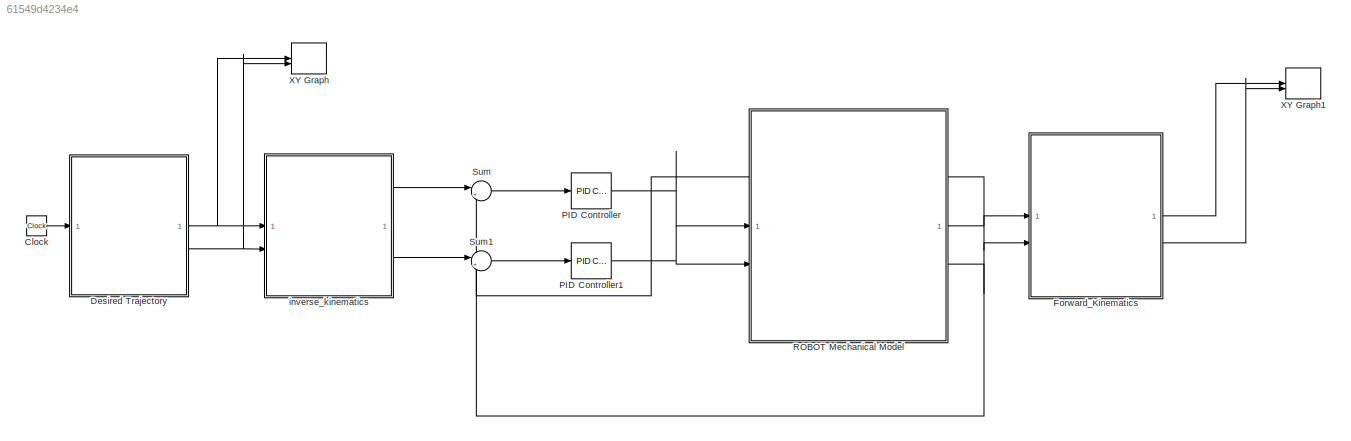
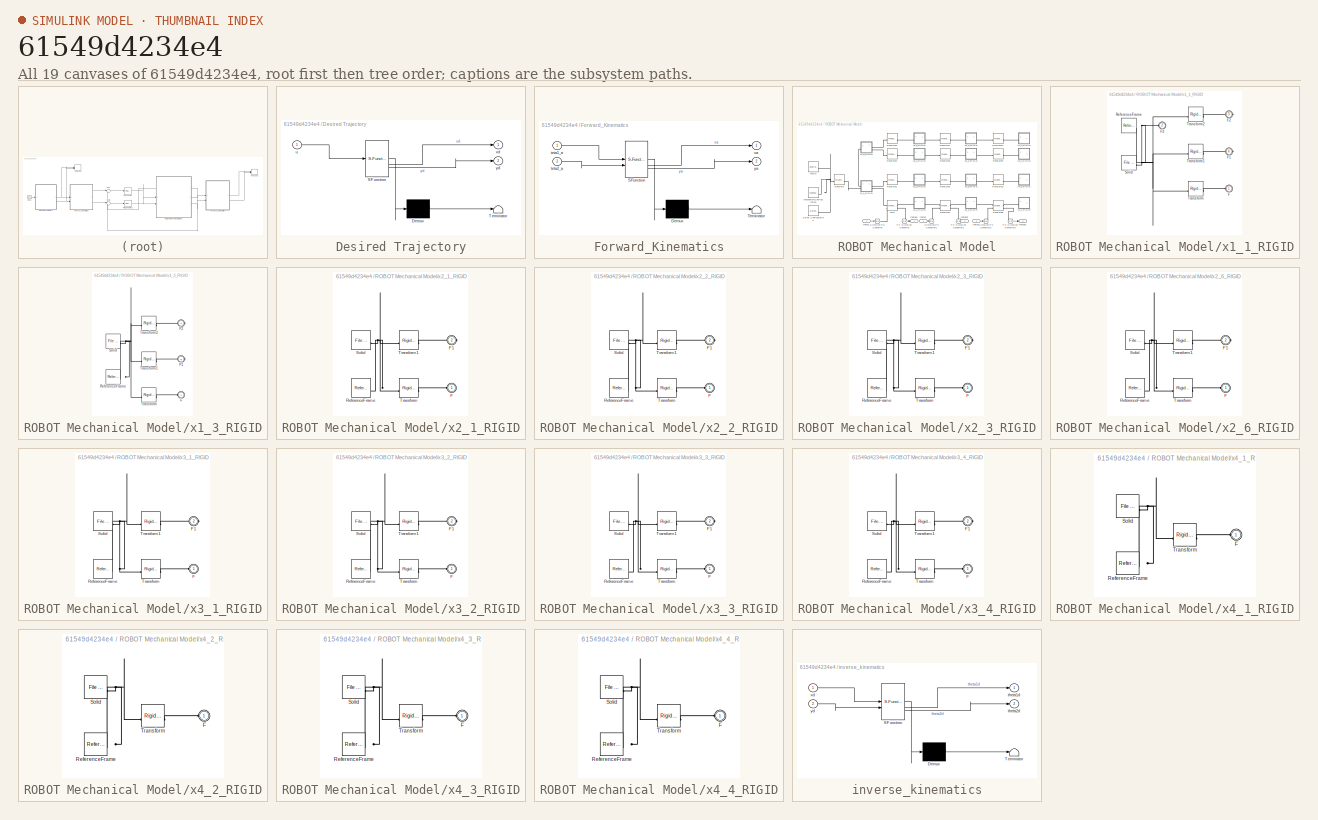
[diagram: thumbnail index - all 19 canvases of the model, root first then tree order]
MODEL slx_61549d4234e4
KIND model
CONFIG AbsTol = auto
CONFIG EnableMultiTasking = off
CONFIG FixedStep = auto
CONFIG MaxStep = auto
CONFIG MinStep = auto
CONFIG RelTol = 1e-3
CONFIG SampleTimeConstraint = Unconstrained
CONFIG SolverName = VariableStepAuto
CONFIG StartTime = 0.0
CONFIG StopTime = 10.0
WORKSPACE source: external: MATLAB File  (data not in archive)
BLOCK [SubSystem]  Desired Trajectory 
  ErrorFcn = Stateflow.Translate.translate
  LibrarySourceBlock = simulink/User-Defined\nFunctions/MATLAB Function
  PermitHierarchicalResolution = ExplicitOnly
  SFBlockType = MATLAB Function
  TreatAsAtomicUnit = on
BLOCK [Demux]  Desired Trajectory / Demux 
  Outputs = 1
BLOCK [S-Function]  Desired Trajectory / SFunction 
  EnableBusSupport = on
  FunctionName = sf_sfun
  PortCounts = [1 3]
  SFcnIsStateOwnerBlock = off
  SFunctionDeploymentMode = off
  Tag = Stateflow S-Function 2
BLOCK [Terminator]  Desired Trajectory / Terminator 
BLOCK [Inport]  Desired Trajectory /u
BLOCK [Outport]  Desired Trajectory /xd
BLOCK [Outport]  Desired Trajectory /yd
  Port = 2
BLOCK [Clock] Clock
  DisplayTime = on
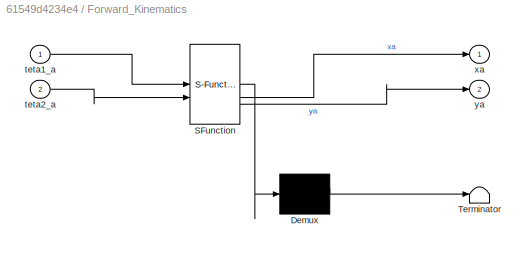
BLOCK [SubSystem] Forward_Kinematics
  ErrorFcn = Stateflow.Translate.translate
  LibrarySourceBlock = simulink/User-Defined\nFunctions/MATLAB Function
  PermitHierarchicalResolution = ExplicitOnly
  SFBlockType = MATLAB Function
  TreatAsAtomicUnit = on
BLOCK [Demux] Forward_Kinematics/ Demux 
  Outputs = 1
BLOCK [S-Function] Forward_Kinematics/ SFunction 
  EnableBusSupport = on
  FunctionName = sf_sfun
  PortCounts = [2 3]
  SFcnIsStateOwnerBlock = off
  SFunctionDeploymentMode = off
  Tag = Stateflow S-Function 1
BLOCK [Terminator] Forward_Kinematics/ Terminator 
BLOCK [Inport] Forward_Kinematics/teta1_a
BLOCK [Inport] Forward_Kinematics/teta2_a
  Port = 2
BLOCK [Outport] Forward_Kinematics/xa
BLOCK [Outport] Forward_Kinematics/ya
  Port = 2
BLOCK [Reference] PID Controller  REF=slpidlib/PID Controller
  LibrarySourceBlock = simulink/Continuous/PID Controller
  SourceBlock = slpidlib/PID Controller
  SourceType = PID 1dof
BLOCK [Reference] PID Controller1  REF=slpidlib/PID Controller
  LibrarySourceBlock = simulink/Continuous/PID Controller
  SourceBlock = slpidlib/PID Controller
  SourceType = PID 1dof
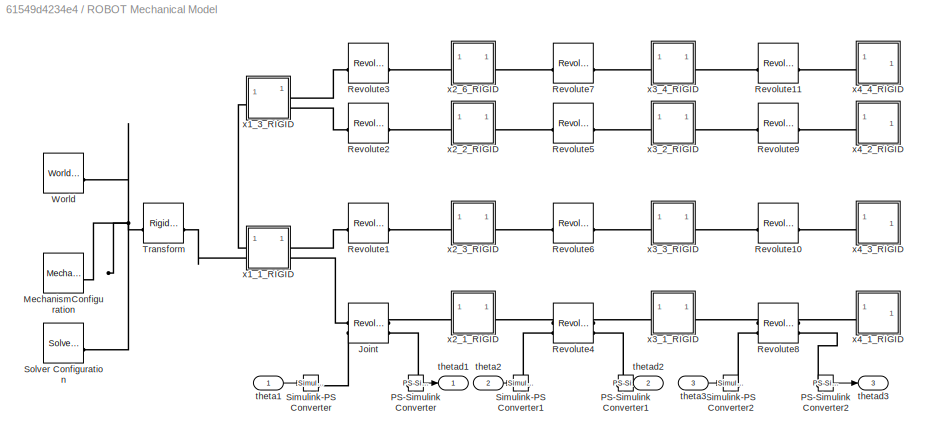
BLOCK [SubSystem] ROBOT Mechanical Model
BLOCK [Reference] ROBOT Mechanical Model/Joint  REF=sm_lib/Joints/Revolute Joint
  SourceBlock = sm_lib/Joints/Revolute Joint
  SourceType = Revolute Joint
BLOCK [Reference] ROBOT Mechanical Model/MechanismConfiguration  REF=sm_lib/Utilities/Mechanism
Configuration
  SourceBlock = sm_lib/Utilities/Mechanism\nConfiguration
  SourceType = Mechanism\nConfiguration
BLOCK [Reference] ROBOT Mechanical Model/PS-Simulink Converter  REF=nesl_utility/PS-Simulink
Converter
  SourceBlock = nesl_utility/PS-Simulink\nConverter
  SourceType = PS-Simulink\nConverter
BLOCK [Reference] ROBOT Mechanical Model/PS-Simulink Converter1  REF=nesl_utility/PS-Simulink
Converter
  SourceBlock = nesl_utility/PS-Simulink\nConverter
  SourceType = PS-Simulink\nConverter
BLOCK [Reference] ROBOT Mechanical Model/PS-Simulink Converter2  REF=nesl_utility/PS-Simulink
Converter
  SourceBlock = nesl_utility/PS-Simulink\nConverter
  SourceType = PS-Simulink\nConverter
BLOCK [Reference] ROBOT Mechanical Model/Revolute1  REF=sm_lib/Joints/Revolute Joint
  SourceBlock = sm_lib/Joints/Revolute Joint
  SourceType = Revolute Joint
BLOCK [Reference] ROBOT Mechanical Model/Revolute10  REF=sm_lib/Joints/Revolute Joint
  SourceBlock = sm_lib/Joints/Revolute Joint
  SourceType = Revolute Joint
BLOCK [Reference] ROBOT Mechanical Model/Revolute11  REF=sm_lib/Joints/Revolute Joint
  SourceBlock = sm_lib/Joints/Revolute Joint
  SourceType = Revolute Joint
BLOCK [Reference] ROBOT Mechanical Model/Revolute2  REF=sm_lib/Joints/Revolute Joint
  SourceBlock = sm_lib/Joints/Revolute Joint
  SourceType = Revolute Joint
BLOCK [Reference] ROBOT Mechanical Model/Revolute3  REF=sm_lib/Joints/Revolute Joint
  SourceBlock = sm_lib/Joints/Revolute Joint
  SourceType = Revolute Joint
BLOCK [Reference] ROBOT Mechanical Model/Revolute4  REF=sm_lib/Joints/Revolute Joint
  SourceBlock = sm_lib/Joints/Revolute Joint
  SourceType = Revolute Joint
BLOCK [Reference] ROBOT Mechanical Model/Revolute5  REF=sm_lib/Joints/Revolute Joint
  SourceBlock = sm_lib/Joints/Revolute Joint
  SourceType = Revolute Joint
BLOCK [Reference] ROBOT Mechanical Model/Revolute6  REF=sm_lib/Joints/Revolute Joint
  SourceBlock = sm_lib/Joints/Revolute Joint
  SourceType = Revolute Joint
BLOCK [Reference] ROBOT Mechanical Model/Revolute7  REF=sm_lib/Joints/Revolute Joint
  SourceBlock = sm_lib/Joints/Revolute Joint
  SourceType = Revolute Joint
BLOCK [Reference] ROBOT Mechanical Model/Revolute8  REF=sm_lib/Joints/Revolute Joint
  SourceBlock = sm_lib/Joints/Revolute Joint
  SourceType = Revolute Joint
BLOCK [Reference] ROBOT Mechanical Model/Revolute9  REF=sm_lib/Joints/Revolute Joint
  SourceBlock = sm_lib/Joints/Revolute Joint
  SourceType = Revolute Joint
BLOCK [Reference] ROBOT Mechanical Model/Simulink-PS Converter  REF=nesl_utility/Simulink-PS
Converter
  SourceBlock = nesl_utility/Simulink-PS\nConverter
  SourceType = Simulink-PS\nConverter
BLOCK [Reference] ROBOT Mechanical Model/Simulink-PS Converter1  REF=nesl_utility/Simulink-PS
Converter
  SourceBlock = nesl_utility/Simulink-PS\nConverter
  SourceType = Simulink-PS\nConverter
BLOCK [Reference] ROBOT Mechanical Model/Simulink-PS Converter2  REF=nesl_utility/Simulink-PS
Converter
  SourceBlock = nesl_utility/Simulink-PS\nConverter
  SourceType = Simulink-PS\nConverter
BLOCK [Reference] ROBOT Mechanical Model/Solver Configuration  REF=nesl_utility/Solver
Configuration
  SourceBlock = nesl_utility/Solver\nConfiguration
  SourceType = Solver\nConfiguration
BLOCK [Reference] ROBOT Mechanical Model/Transform  REF=sm_lib/Frames and
Transforms/Rigid
Transform
  SourceBlock = sm_lib/Frames and\nTransforms/Rigid\nTransform
  SourceType = Rigid\nTransform
BLOCK [Reference] ROBOT Mechanical Model/World  REF=sm_lib/Frames and
Transforms/World Frame
  SourceBlock = sm_lib/Frames and\nTransforms/World Frame
  SourceType = World Frame
BLOCK [Inport] ROBOT Mechanical Model/theta1
BLOCK [Inport] ROBOT Mechanical Model/theta2
  Port = 2
BLOCK [Inport] ROBOT Mechanical Model/theta3
  Port = 3
BLOCK [Outport] ROBOT Mechanical Model/thetad1
BLOCK [Outport] ROBOT Mechanical Model/thetad2
  Port = 2
BLOCK [Outport] ROBOT Mechanical Model/thetad3
  Port = 3
BLOCK [SubSystem] ROBOT Mechanical Model/x1_1_RIGID
BLOCK [PMIOPort] ROBOT Mechanical Model/x1_1_RIGID/F
  Side = Left
BLOCK [PMIOPort] ROBOT Mechanical Model/x1_1_RIGID/F1
  Port = 4
  Side = Right
BLOCK [PMIOPort] ROBOT Mechanical Model/x1_1_RIGID/F2
  Port = 3
  Side = Right
BLOCK [PMIOPort] ROBOT Mechanical Model/x1_1_RIGID/F3
  Port = 2
  Side = Left
BLOCK [Reference] ROBOT Mechanical Model/x1_1_RIGID/ReferenceFrame  REF=sm_lib/Frames and
Transforms/Reference
Frame
  SourceBlock = sm_lib/Frames and\nTransforms/Reference\nFrame
  SourceType = Reference\nFrame
BLOCK [Reference] ROBOT Mechanical Model/x1_1_RIGID/Solid  REF=sm_lib/Body Elements/File Solid
  SourceBlock = sm_lib/Body Elements/File Solid
  SourceType = File Solid
BLOCK [Reference] ROBOT Mechanical Model/x1_1_RIGID/Transform  REF=sm_lib/Frames and
Transforms/Rigid
Transform
  SourceBlock = sm_lib/Frames and\nTransforms/Rigid\nTransform
  SourceType = Rigid\nTransform
BLOCK [Reference] ROBOT Mechanical Model/x1_1_RIGID/Transform1  REF=sm_lib/Frames and
Transforms/Rigid
Transform
  SourceBlock = sm_lib/Frames and\nTransforms/Rigid\nTransform
  SourceType = Rigid\nTransform
BLOCK [Reference] ROBOT Mechanical Model/x1_1_RIGID/Transform2  REF=sm_lib/Frames and
Transforms/Rigid
Transform
  SourceBlock = sm_lib/Frames and\nTransforms/Rigid\nTransform
  SourceType = Rigid\nTransform
BLOCK [SubSystem] ROBOT Mechanical Model/x1_3_RIGID
BLOCK [PMIOPort] ROBOT Mechanical Model/x1_3_RIGID/F
  Side = Left
BLOCK [PMIOPort] ROBOT Mechanical Model/x1_3_RIGID/F1
  Port = 3
  Side = Right
BLOCK [PMIOPort] ROBOT Mechanical Model/x1_3_RIGID/F2
  Port = 2
  Side = Right
BLOCK [Reference] ROBOT Mechanical Model/x1_3_RIGID/ReferenceFrame  REF=sm_lib/Frames and
Transforms/Reference
Frame
  SourceBlock = sm_lib/Frames and\nTransforms/Reference\nFrame
  SourceType = Reference\nFrame
BLOCK [Reference] ROBOT Mechanical Model/x1_3_RIGID/Solid  REF=sm_lib/Body Elements/File Solid
  SourceBlock = sm_lib/Body Elements/File Solid
  SourceType = File Solid
BLOCK [Reference] ROBOT Mechanical Model/x1_3_RIGID/Transform  REF=sm_lib/Frames and
Transforms/Rigid
Transform
  SourceBlock = sm_lib/Frames and\nTransforms/Rigid\nTransform
  SourceType = Rigid\nTransform
BLOCK [Reference] ROBOT Mechanical Model/x1_3_RIGID/Transform1  REF=sm_lib/Frames and
Transforms/Rigid
Transform
  SourceBlock = sm_lib/Frames and\nTransforms/Rigid\nTransform
  SourceType = Rigid\nTransform
BLOCK [Reference] ROBOT Mechanical Model/x1_3_RIGID/Transform2  REF=sm_lib/Frames and
Transforms/Rigid
Transform
  SourceBlock = sm_lib/Frames and\nTransforms/Rigid\nTransform
  SourceType = Rigid\nTransform
BLOCK [SubSystem] ROBOT Mechanical Model/x2_1_RIGID
BLOCK [PMIOPort] ROBOT Mechanical Model/x2_1_RIGID/F
  Side = Left
BLOCK [PMIOPort] ROBOT Mechanical Model/x2_1_RIGID/F1
  Port = 2
  Side = Right
BLOCK [Reference] ROBOT Mechanical Model/x2_1_RIGID/ReferenceFrame  REF=sm_lib/Frames and
Transforms/Reference
Frame
  SourceBlock = sm_lib/Frames and\nTransforms/Reference\nFrame
  SourceType = Reference\nFrame
BLOCK [Reference] ROBOT Mechanical Model/x2_1_RIGID/Solid  REF=sm_lib/Body Elements/File Solid
  SourceBlock = sm_lib/Body Elements/File Solid
  SourceType = File Solid
BLOCK [Reference] ROBOT Mechanical Model/x2_1_RIGID/Transform  REF=sm_lib/Frames and
Transforms/Rigid
Transform
  SourceBlock = sm_lib/Frames and\nTransforms/Rigid\nTransform
  SourceType = Rigid\nTransform
BLOCK [Reference] ROBOT Mechanical Model/x2_1_RIGID/Transform1  REF=sm_lib/Frames and
Transforms/Rigid
Transform
  SourceBlock = sm_lib/Frames and\nTransforms/Rigid\nTransform
  SourceType = Rigid\nTransform
BLOCK [SubSystem] ROBOT Mechanical Model/x2_2_RIGID
BLOCK [PMIOPort] ROBOT Mechanical Model/x2_2_RIGID/F
  Side = Left
BLOCK [PMIOPort] ROBOT Mechanical Model/x2_2_RIGID/F1
  Port = 2
  Side = Right
BLOCK [Reference] ROBOT Mechanical Model/x2_2_RIGID/ReferenceFrame  REF=sm_lib/Frames and
Transforms/Reference
Frame
  SourceBlock = sm_lib/Frames and\nTransforms/Reference\nFrame
  SourceType = Reference\nFrame
BLOCK [Reference] ROBOT Mechanical Model/x2_2_RIGID/Solid  REF=sm_lib/Body Elements/File Solid
  SourceBlock = sm_lib/Body Elements/File Solid
  SourceType = File Solid
BLOCK [Reference] ROBOT Mechanical Model/x2_2_RIGID/Transform  REF=sm_lib/Frames and
Transforms/Rigid
Transform
  SourceBlock = sm_lib/Frames and\nTransforms/Rigid\nTransform
  SourceType = Rigid\nTransform
BLOCK [Reference] ROBOT Mechanical Model/x2_2_RIGID/Transform1  REF=sm_lib/Frames and
Transforms/Rigid
Transform
  SourceBlock = sm_lib/Frames and\nTransforms/Rigid\nTransform
  SourceType = Rigid\nTransform
BLOCK [SubSystem] ROBOT Mechanical Model/x2_3_RIGID
BLOCK [PMIOPort] ROBOT Mechanical Model/x2_3_RIGID/F
  Side = Left
BLOCK [PMIOPort] ROBOT Mechanical Model/x2_3_RIGID/F1
  Port = 2
  Side = Right
BLOCK [Reference] ROBOT Mechanical Model/x2_3_RIGID/ReferenceFrame  REF=sm_lib/Frames and
Transforms/Reference
Frame
  SourceBlock = sm_lib/Frames and\nTransforms/Reference\nFrame
  SourceType = Reference\nFrame
BLOCK [Reference] ROBOT Mechanical Model/x2_3_RIGID/Solid  REF=sm_lib/Body Elements/File Solid
  SourceBlock = sm_lib/Body Elements/File Solid
  SourceType = File Solid
BLOCK [Reference] ROBOT Mechanical Model/x2_3_RIGID/Transform  REF=sm_lib/Frames and
Transforms/Rigid
Transform
  SourceBlock = sm_lib/Frames and\nTransforms/Rigid\nTransform
  SourceType = Rigid\nTransform
BLOCK [Reference] ROBOT Mechanical Model/x2_3_RIGID/Transform1  REF=sm_lib/Frames and
Transforms/Rigid
Transform
  SourceBlock = sm_lib/Frames and\nTransforms/Rigid\nTransform
  SourceType = Rigid\nTransform
BLOCK [SubSystem] ROBOT Mechanical Model/x2_6_RIGID
BLOCK [PMIOPort] ROBOT Mechanical Model/x2_6_RIGID/F
  Side = Left
BLOCK [PMIOPort] ROBOT Mechanical Model/x2_6_RIGID/F1
  Port = 2
  Side = Right
BLOCK [Reference] ROBOT Mechanical Model/x2_6_RIGID/ReferenceFrame  REF=sm_lib/Frames and
Transforms/Reference
Frame
  SourceBlock = sm_lib/Frames and\nTransforms/Reference\nFrame
  SourceType = Reference\nFrame
BLOCK [Reference] ROBOT Mechanical Model/x2_6_RIGID/Solid  REF=sm_lib/Body Elements/File Solid
  SourceBlock = sm_lib/Body Elements/File Solid
  SourceType = File Solid
BLOCK [Reference] ROBOT Mechanical Model/x2_6_RIGID/Transform  REF=sm_lib/Frames and
Transforms/Rigid
Transform
  SourceBlock = sm_lib/Frames and\nTransforms/Rigid\nTransform
  SourceType = Rigid\nTransform
BLOCK [Reference] ROBOT Mechanical Model/x2_6_RIGID/Transform1  REF=sm_lib/Frames and
Transforms/Rigid
Transform
  SourceBlock = sm_lib/Frames and\nTransforms/Rigid\nTransform
  SourceType = Rigid\nTransform
BLOCK [SubSystem] ROBOT Mechanical Model/x3_1_RIGID
BLOCK [PMIOPort] ROBOT Mechanical Model/x3_1_RIGID/F
  Side = Left
BLOCK [PMIOPort] ROBOT Mechanical Model/x3_1_RIGID/F1
  Port = 2
  Side = Right
BLOCK [Reference] ROBOT Mechanical Model/x3_1_RIGID/ReferenceFrame  REF=sm_lib/Frames and
Transforms/Reference
Frame
  SourceBlock = sm_lib/Frames and\nTransforms/Reference\nFrame
  SourceType = Reference\nFrame
BLOCK [Reference] ROBOT Mechanical Model/x3_1_RIGID/Solid  REF=sm_lib/Body Elements/File Solid
  SourceBlock = sm_lib/Body Elements/File Solid
  SourceType = File Solid
BLOCK [Reference] ROBOT Mechanical Model/x3_1_RIGID/Transform  REF=sm_lib/Frames and
Transforms/Rigid
Transform
  SourceBlock = sm_lib/Frames and\nTransforms/Rigid\nTransform
  SourceType = Rigid\nTransform
BLOCK [Reference] ROBOT Mechanical Model/x3_1_RIGID/Transform1  REF=sm_lib/Frames and
Transforms/Rigid
Transform
  SourceBlock = sm_lib/Frames and\nTransforms/Rigid\nTransform
  SourceType = Rigid\nTransform
BLOCK [SubSystem] ROBOT Mechanical Model/x3_2_RIGID
BLOCK [PMIOPort] ROBOT Mechanical Model/x3_2_RIGID/F
  Side = Left
BLOCK [PMIOPort] ROBOT Mechanical Model/x3_2_RIGID/F1
  Port = 2
  Side = Right
BLOCK [Reference] ROBOT Mechanical Model/x3_2_RIGID/ReferenceFrame  REF=sm_lib/Frames and
Transforms/Reference
Frame
  SourceBlock = sm_lib/Frames and\nTransforms/Reference\nFrame
  SourceType = Reference\nFrame
BLOCK [Reference] ROBOT Mechanical Model/x3_2_RIGID/Solid  REF=sm_lib/Body Elements/File Solid
  SourceBlock = sm_lib/Body Elements/File Solid
  SourceType = File Solid
BLOCK [Reference] ROBOT Mechanical Model/x3_2_RIGID/Transform  REF=sm_lib/Frames and
Transforms/Rigid
Transform
  SourceBlock = sm_lib/Frames and\nTransforms/Rigid\nTransform
  SourceType = Rigid\nTransform
BLOCK [Reference] ROBOT Mechanical Model/x3_2_RIGID/Transform1  REF=sm_lib/Frames and
Transforms/Rigid
Transform
  SourceBlock = sm_lib/Frames and\nTransforms/Rigid\nTransform
  SourceType = Rigid\nTransform
BLOCK [SubSystem] ROBOT Mechanical Model/x3_3_RIGID
BLOCK [PMIOPort] ROBOT Mechanical Model/x3_3_RIGID/F
  Side = Left
BLOCK [PMIOPort] ROBOT Mechanical Model/x3_3_RIGID/F1
  Port = 2
  Side = Right
BLOCK [Reference] ROBOT Mechanical Model/x3_3_RIGID/ReferenceFrame  REF=sm_lib/Frames and
Transforms/Reference
Frame
  SourceBlock = sm_lib/Frames and\nTransforms/Reference\nFrame
  SourceType = Reference\nFrame
BLOCK [Reference] ROBOT Mechanical Model/x3_3_RIGID/Solid  REF=sm_lib/Body Elements/File Solid
  SourceBlock = sm_lib/Body Elements/File Solid
  SourceType = File Solid
BLOCK [Reference] ROBOT Mechanical Model/x3_3_RIGID/Transform  REF=sm_lib/Frames and
Transforms/Rigid
Transform
  SourceBlock = sm_lib/Frames and\nTransforms/Rigid\nTransform
  SourceType = Rigid\nTransform
BLOCK [Reference] ROBOT Mechanical Model/x3_3_RIGID/Transform1  REF=sm_lib/Frames and
Transforms/Rigid
Transform
  SourceBlock = sm_lib/Frames and\nTransforms/Rigid\nTransform
  SourceType = Rigid\nTransform
BLOCK [SubSystem] ROBOT Mechanical Model/x3_4_RIGID
BLOCK [PMIOPort] ROBOT Mechanical Model/x3_4_RIGID/F
  Side = Left
BLOCK [PMIOPort] ROBOT Mechanical Model/x3_4_RIGID/F1
  Port = 2
  Side = Right
BLOCK [Reference] ROBOT Mechanical Model/x3_4_RIGID/ReferenceFrame  REF=sm_lib/Frames and
Transforms/Reference
Frame
  SourceBlock = sm_lib/Frames and\nTransforms/Reference\nFrame
  SourceType = Reference\nFrame
BLOCK [Reference] ROBOT Mechanical Model/x3_4_RIGID/Solid  REF=sm_lib/Body Elements/File Solid
  SourceBlock = sm_lib/Body Elements/File Solid
  SourceType = File Solid
BLOCK [Reference] ROBOT Mechanical Model/x3_4_RIGID/Transform  REF=sm_lib/Frames and
Transforms/Rigid
Transform
  SourceBlock = sm_lib/Frames and\nTransforms/Rigid\nTransform
  SourceType = Rigid\nTransform
BLOCK [Reference] ROBOT Mechanical Model/x3_4_RIGID/Transform1  REF=sm_lib/Frames and
Transforms/Rigid
Transform
  SourceBlock = sm_lib/Frames and\nTransforms/Rigid\nTransform
  SourceType = Rigid\nTransform
BLOCK [SubSystem] ROBOT Mechanical Model/x4_1_RIGID
BLOCK [PMIOPort] ROBOT Mechanical Model/x4_1_RIGID/F
  Side = Left
BLOCK [Reference] ROBOT Mechanical Model/x4_1_RIGID/ReferenceFrame  REF=sm_lib/Frames and
Transforms/Reference
Frame
  SourceBlock = sm_lib/Frames and\nTransforms/Reference\nFrame
  SourceType = Reference\nFrame
BLOCK [Reference] ROBOT Mechanical Model/x4_1_RIGID/Solid  REF=sm_lib/Body Elements/File Solid
  SourceBlock = sm_lib/Body Elements/File Solid
  SourceType = File Solid
BLOCK [Reference] ROBOT Mechanical Model/x4_1_RIGID/Transform  REF=sm_lib/Frames and
Transforms/Rigid
Transform
  SourceBlock = sm_lib/Frames and\nTransforms/Rigid\nTransform
  SourceType = Rigid\nTransform
BLOCK [SubSystem] ROBOT Mechanical Model/x4_2_RIGID
BLOCK [PMIOPort] ROBOT Mechanical Model/x4_2_RIGID/F
  Side = Left
BLOCK [Reference] ROBOT Mechanical Model/x4_2_RIGID/ReferenceFrame  REF=sm_lib/Frames and
Transforms/Reference
Frame
  SourceBlock = sm_lib/Frames and\nTransforms/Reference\nFrame
  SourceType = Reference\nFrame
BLOCK [Reference] ROBOT Mechanical Model/x4_2_RIGID/Solid  REF=sm_lib/Body Elements/File Solid
  SourceBlock = sm_lib/Body Elements/File Solid
  SourceType = File Solid
BLOCK [Reference] ROBOT Mechanical Model/x4_2_RIGID/Transform  REF=sm_lib/Frames and
Transforms/Rigid
Transform
  SourceBlock = sm_lib/Frames and\nTransforms/Rigid\nTransform
  SourceType = Rigid\nTransform
BLOCK [SubSystem] ROBOT Mechanical Model/x4_3_RIGID
BLOCK [PMIOPort] ROBOT Mechanical Model/x4_3_RIGID/F
  Side = Left
BLOCK [Reference] ROBOT Mechanical Model/x4_3_RIGID/ReferenceFrame  REF=sm_lib/Frames and
Transforms/Reference
Frame
  SourceBlock = sm_lib/Frames and\nTransforms/Reference\nFrame
  SourceType = Reference\nFrame
BLOCK [Reference] ROBOT Mechanical Model/x4_3_RIGID/Solid  REF=sm_lib/Body Elements/File Solid
  SourceBlock = sm_lib/Body Elements/File Solid
  SourceType = File Solid
BLOCK [Reference] ROBOT Mechanical Model/x4_3_RIGID/Transform  REF=sm_lib/Frames and
Transforms/Rigid
Transform
  SourceBlock = sm_lib/Frames and\nTransforms/Rigid\nTransform
  SourceType = Rigid\nTransform
BLOCK [SubSystem] ROBOT Mechanical Model/x4_4_RIGID
BLOCK [PMIOPort] ROBOT Mechanical Model/x4_4_RIGID/F
  Side = Left
BLOCK [Reference] ROBOT Mechanical Model/x4_4_RIGID/ReferenceFrame  REF=sm_lib/Frames and
Transforms/Reference
Frame
  SourceBlock = sm_lib/Frames and\nTransforms/Reference\nFrame
  SourceType = Reference\nFrame
BLOCK [Reference] ROBOT Mechanical Model/x4_4_RIGID/Solid  REF=sm_lib/Body Elements/File Solid
  SourceBlock = sm_lib/Body Elements/File Solid
  SourceType = File Solid
BLOCK [Reference] ROBOT Mechanical Model/x4_4_RIGID/Transform  REF=sm_lib/Frames and
Transforms/Rigid
Transform
  SourceBlock = sm_lib/Frames and\nTransforms/Rigid\nTransform
  SourceType = Rigid\nTransform
BLOCK [Sum] Sum
  Inputs = |+-
BLOCK [Sum] Sum1
  Inputs = |+-
BLOCK [Record] XY Graph
  CompatibilityTag = XY
  FileSettingsInternal = {"entries":[{"content":{"excelSettings":{"content":{},"type":"Streamout.ExcelSettings"}},"type":"Streamout.FileSettingStorage","uuid":"b5d01f74-d129-4f13-bc52-0b9e9b4869a2"}],"packageUris":["http://schema.mathworks.com/mf0/streamout_blocks/R2020a"],"version":"1.0"}
  Layout = [1 1]
  SignalsInternal = {"entries":[{"content":{"signals":[{"content":{"blockPath":["assembl/XY Graph"],"dimensions":[1],"domain":"assembl/XY Graph","lineColor":"#a2142f","plots":[1],"port":1,"sid":[""],"signalID":2140,"signalName":" Desired Trajectory\n:1"},"type":"RecordBlkView.Signal","uuid":"72cfabee-8f5f-4913-a6e7-3ffccfa3593d"},{"content":{"blockPath":["assembl/XY Graph"],"dimensions":[1],"domain":"assembl/XY Graph...<+365ch>
  VisualizationBindings = {"xyplotplugin":{"info":[{"series":[{"bindingParametersList":[{"parameter":"X-Axis","signalID":2140,"signalName":" Desired Trajectory\n:1"},{"parameter":"Y-Axis","signalID":2144,"signalName":" Desired Trajectory\n:2"}],"seriesID":13467}],"subplotID":1}]}}
BLOCK [Record] XY Graph1
  CompatibilityTag = XY
  FileSettingsInternal = {"entries":[{"content":{"excelSettings":{"content":{},"type":"Streamout.ExcelSettings"}},"type":"Streamout.FileSettingStorage","uuid":"66b0e053-1753-4755-b150-cf86ccd9d25a"}],"packageUris":["http://schema.mathworks.com/mf0/streamout_blocks/R2020a"],"version":"1.0"}
  Layout = [1 1]
  SignalsInternal = {"entries":[{"content":{"signals":[{"content":{"blockPath":["assembl/XY Graph1"],"dimensions":[1],"domain":"assembl/XY Graph1","lineColor":"#a2142f","plots":[1],"port":1,"sid":[""],"signalID":2148,"signalName":"Forward_Kinematics:1"},"type":"RecordBlkView.Signal","uuid":"97b5d1c1-3de6-4dc3-a7ae-e1ac05bb356e"},{"content":{"blockPath":["assembl/XY Graph1"],"dimensions":[1],"domain":"assembl/XY Graph...<+363ch>
  VisualizationBindings = {"xyplotplugin":{"info":[{"series":[{"bindingParametersList":[{"parameter":"X-Axis","signalID":2148,"signalName":"Forward_Kinematics:1"},{"parameter":"Y-Axis","signalID":2152,"signalName":"Forward_Kinematics:2"}],"seriesID":23938}],"subplotID":1}]}}
BLOCK [SubSystem] inverse_kinematics
  ErrorFcn = Stateflow.Translate.translate
  LibrarySourceBlock = simulink/User-Defined\nFunctions/MATLAB Function
  PermitHierarchicalResolution = ExplicitOnly
  SFBlockType = MATLAB Function
  TreatAsAtomicUnit = on
BLOCK [Demux] inverse_kinematics/ Demux 
  Outputs = 1
BLOCK [S-Function] inverse_kinematics/ SFunction 
  EnableBusSupport = on
  FunctionName = sf_sfun
  PortCounts = [2 3]
  SFcnIsStateOwnerBlock = off
  SFunctionDeploymentMode = off
  Tag = Stateflow S-Function 3
BLOCK [Terminator] inverse_kinematics/ Terminator 
BLOCK [Outport] inverse_kinematics/theta1d
BLOCK [Outport] inverse_kinematics/theta2d
  Port = 2
BLOCK [Inport] inverse_kinematics/xd
BLOCK [Inport] inverse_kinematics/yd
  Port = 2
NET  Desired Trajectory :1 -> XY Graph:1, inverse_kinematics:1
NET  Desired Trajectory :2 -> XY Graph:2, inverse_kinematics:2
LINE Clock:1 ->  Desired Trajectory :1
LINE Forward_Kinematics:1 -> XY Graph1:1
LINE Forward_Kinematics:2 -> XY Graph1:2
LINE PID Controller1:1 -> ROBOT Mechanical Model:2
LINE PID Controller:1 -> ROBOT Mechanical Model:1
LINE ROBOT Mechanical Model/PS-Simulink Converter1:1 -> ROBOT Mechanical Model/thetad2:1
LINE ROBOT Mechanical Model/PS-Simulink Converter2:1 -> ROBOT Mechanical Model/thetad3:1
LINE ROBOT Mechanical Model/PS-Simulink Converter:1 -> ROBOT Mechanical Model/thetad1:1
LINE ROBOT Mechanical Model/theta1:1 -> ROBOT Mechanical Model/Simulink-PS Converter:1
LINE ROBOT Mechanical Model/theta2:1 -> ROBOT Mechanical Model/Simulink-PS Converter1:1
LINE ROBOT Mechanical Model/theta3:1 -> ROBOT Mechanical Model/Simulink-PS Converter2:1
NET ROBOT Mechanical Model:1 -> Forward_Kinematics:1, Sum:2
NET ROBOT Mechanical Model:2 -> Forward_Kinematics:2, Sum1:2
LINE Sum1:1 -> PID Controller1:1
LINE Sum:1 -> PID Controller:1
LINE inverse_kinematics:1 -> Sum:1
LINE inverse_kinematics:2 -> Sum1:1
PLINE ROBOT Mechanical Model/Joint:LConn1 -- ROBOT Mechanical Model/x1_1_RIGID:RConn2
PLINE ROBOT Mechanical Model/Joint:LConn2 -- ROBOT Mechanical Model/Simulink-PS Converter:RConn1
PLINE ROBOT Mechanical Model/Joint:RConn1 -- ROBOT Mechanical Model/x2_1_RIGID:LConn1
PLINE ROBOT Mechanical Model/Joint:RConn2 -- ROBOT Mechanical Model/PS-Simulink Converter:LConn1
PNET net1: ROBOT Mechanical Model/MechanismConfiguration:RConn1 -- ROBOT Mechanical Model/Solver Configuration:RConn1 -- ROBOT Mechanical Model/Transform:LConn1 -- ROBOT Mechanical Model/World:RConn1
PLINE ROBOT Mechanical Model/PS-Simulink Converter1:LConn1 -- ROBOT Mechanical Model/Revolute4:RConn2
PLINE ROBOT Mechanical Model/PS-Simulink Converter2:LConn1 -- ROBOT Mechanical Model/Revolute8:RConn2
PLINE ROBOT Mechanical Model/Revolute10:LConn1 -- ROBOT Mechanical Model/x3_3_RIGID:RConn1
PLINE ROBOT Mechanical Model/Revolute10:RConn1 -- ROBOT Mechanical Model/x4_3_RIGID:LConn1
PLINE ROBOT Mechanical Model/Revolute11:LConn1 -- ROBOT Mechanical Model/x3_4_RIGID:RConn1
PLINE ROBOT Mechanical Model/Revolute11:RConn1 -- ROBOT Mechanical Model/x4_4_RIGID:LConn1
PLINE ROBOT Mechanical Model/Revolute1:LConn1 -- ROBOT Mechanical Model/x1_1_RIGID:RConn1
PLINE ROBOT Mechanical Model/Revolute1:RConn1 -- ROBOT Mechanical Model/x2_3_RIGID:LConn1
PLINE ROBOT Mechanical Model/Revolute2:LConn1 -- ROBOT Mechanical Model/x1_3_RIGID:RConn2
PLINE ROBOT Mechanical Model/Revolute2:RConn1 -- ROBOT Mechanical Model/x2_2_RIGID:LConn1
PLINE ROBOT Mechanical Model/Revolute3:LConn1 -- ROBOT Mechanical Model/x1_3_RIGID:RConn1
PLINE ROBOT Mechanical Model/Revolute3:RConn1 -- ROBOT Mechanical Model/x2_6_RIGID:LConn1
PLINE ROBOT Mechanical Model/Revolute4:LConn1 -- ROBOT Mechanical Model/x2_1_RIGID:RConn1
PLINE ROBOT Mechanical Model/Revolute4:LConn2 -- ROBOT Mechanical Model/Simulink-PS Converter1:RConn1
PLINE ROBOT Mechanical Model/Revolute4:RConn1 -- ROBOT Mechanical Model/x3_1_RIGID:LConn1
PLINE ROBOT Mechanical Model/Revolute5:LConn1 -- ROBOT Mechanical Model/x2_2_RIGID:RConn1
PLINE ROBOT Mechanical Model/Revolute5:RConn1 -- ROBOT Mechanical Model/x3_2_RIGID:LConn1
PLINE ROBOT Mechanical Model/Revolute6:LConn1 -- ROBOT Mechanical Model/x2_3_RIGID:RConn1
PLINE ROBOT Mechanical Model/Revolute6:RConn1 -- ROBOT Mechanical Model/x3_3_RIGID:LConn1
PLINE ROBOT Mechanical Model/Revolute7:LConn1 -- ROBOT Mechanical Model/x2_6_RIGID:RConn1
PLINE ROBOT Mechanical Model/Revolute7:RConn1 -- ROBOT Mechanical Model/x3_4_RIGID:LConn1
PLINE ROBOT Mechanical Model/Revolute8:LConn1 -- ROBOT Mechanical Model/x3_1_RIGID:RConn1
PLINE ROBOT Mechanical Model/Revolute8:LConn2 -- ROBOT Mechanical Model/Simulink-PS Converter2:RConn1
PLINE ROBOT Mechanical Model/Revolute8:RConn1 -- ROBOT Mechanical Model/x4_1_RIGID:LConn1
PLINE ROBOT Mechanical Model/Revolute9:LConn1 -- ROBOT Mechanical Model/x3_2_RIGID:RConn1
PLINE ROBOT Mechanical Model/Revolute9:RConn1 -- ROBOT Mechanical Model/x4_2_RIGID:LConn1
PLINE ROBOT Mechanical Model/Transform:RConn1 -- ROBOT Mechanical Model/x1_1_RIGID:LConn2
PLINE ROBOT Mechanical Model/x1_1_RIGID/F1:RConn1 -- ROBOT Mechanical Model/x1_1_RIGID/Transform1:RConn1
PLINE ROBOT Mechanical Model/x1_1_RIGID/F2:RConn1 -- ROBOT Mechanical Model/x1_1_RIGID/Transform2:RConn1
PNET net2: ROBOT Mechanical Model/x1_1_RIGID/F3:RConn1 -- ROBOT Mechanical Model/x1_1_RIGID/ReferenceFrame:RConn1 -- ROBOT Mechanical Model/x1_1_RIGID/Solid:RConn1 -- ROBOT Mechanical Model/x1_1_RIGID/Transform1:LConn1 -- ROBOT Mechanical Model/x1_1_RIGID/Transform2:LConn1 -- ROBOT Mechanical Model/x1_1_RIGID/Transform:LConn1
PLINE ROBOT Mechanical Model/x1_1_RIGID/F:RConn1 -- ROBOT Mechanical Model/x1_1_RIGID/Transform:RConn1
PLINE ROBOT Mechanical Model/x1_1_RIGID:LConn1 -- ROBOT Mechanical Model/x1_3_RIGID:LConn1
PLINE ROBOT Mechanical Model/x1_3_RIGID/F1:RConn1 -- ROBOT Mechanical Model/x1_3_RIGID/Transform1:RConn1
PLINE ROBOT Mechanical Model/x1_3_RIGID/F2:RConn1 -- ROBOT Mechanical Model/x1_3_RIGID/Transform2:RConn1
PLINE ROBOT Mechanical Model/x1_3_RIGID/F:RConn1 -- ROBOT Mechanical Model/x1_3_RIGID/Transform:RConn1
PNET net3: ROBOT Mechanical Model/x1_3_RIGID/ReferenceFrame:RConn1 -- ROBOT Mechanical Model/x1_3_RIGID/Solid:RConn1 -- ROBOT Mechanical Model/x1_3_RIGID/Transform1:LConn1 -- ROBOT Mechanical Model/x1_3_RIGID/Transform2:LConn1 -- ROBOT Mechanical Model/x1_3_RIGID/Transform:LConn1
PLINE ROBOT Mechanical Model/x2_1_RIGID/F1:RConn1 -- ROBOT Mechanical Model/x2_1_RIGID/Transform1:RConn1
PLINE ROBOT Mechanical Model/x2_1_RIGID/F:RConn1 -- ROBOT Mechanical Model/x2_1_RIGID/Transform:RConn1
PNET net4: ROBOT Mechanical Model/x2_1_RIGID/ReferenceFrame:RConn1 -- ROBOT Mechanical Model/x2_1_RIGID/Solid:RConn1 -- ROBOT Mechanical Model/x2_1_RIGID/Transform1:LConn1 -- ROBOT Mechanical Model/x2_1_RIGID/Transform:LConn1
PLINE ROBOT Mechanical Model/x2_2_RIGID/F1:RConn1 -- ROBOT Mechanical Model/x2_2_RIGID/Transform1:RConn1
PLINE ROBOT Mechanical Model/x2_2_RIGID/F:RConn1 -- ROBOT Mechanical Model/x2_2_RIGID/Transform:RConn1
PNET net5: ROBOT Mechanical Model/x2_2_RIGID/ReferenceFrame:RConn1 -- ROBOT Mechanical Model/x2_2_RIGID/Solid:RConn1 -- ROBOT Mechanical Model/x2_2_RIGID/Transform1:LConn1 -- ROBOT Mechanical Model/x2_2_RIGID/Transform:LConn1
PLINE ROBOT Mechanical Model/x2_3_RIGID/F1:RConn1 -- ROBOT Mechanical Model/x2_3_RIGID/Transform1:RConn1
PLINE ROBOT Mechanical Model/x2_3_RIGID/F:RConn1 -- ROBOT Mechanical Model/x2_3_RIGID/Transform:RConn1
PNET net6: ROBOT Mechanical Model/x2_3_RIGID/ReferenceFrame:RConn1 -- ROBOT Mechanical Model/x2_3_RIGID/Solid:RConn1 -- ROBOT Mechanical Model/x2_3_RIGID/Transform1:LConn1 -- ROBOT Mechanical Model/x2_3_RIGID/Transform:LConn1
PLINE ROBOT Mechanical Model/x2_6_RIGID/F1:RConn1 -- ROBOT Mechanical Model/x2_6_RIGID/Transform1:RConn1
PLINE ROBOT Mechanical Model/x2_6_RIGID/F:RConn1 -- ROBOT Mechanical Model/x2_6_RIGID/Transform:RConn1
PNET net7: ROBOT Mechanical Model/x2_6_RIGID/ReferenceFrame:RConn1 -- ROBOT Mechanical Model/x2_6_RIGID/Solid:RConn1 -- ROBOT Mechanical Model/x2_6_RIGID/Transform1:LConn1 -- ROBOT Mechanical Model/x2_6_RIGID/Transform:LConn1
PLINE ROBOT Mechanical Model/x3_1_RIGID/F1:RConn1 -- ROBOT Mechanical Model/x3_1_RIGID/Transform1:RConn1
PLINE ROBOT Mechanical Model/x3_1_RIGID/F:RConn1 -- ROBOT Mechanical Model/x3_1_RIGID/Transform:RConn1
PNET net8: ROBOT Mechanical Model/x3_1_RIGID/ReferenceFrame:RConn1 -- ROBOT Mechanical Model/x3_1_RIGID/Solid:RConn1 -- ROBOT Mechanical Model/x3_1_RIGID/Transform1:LConn1 -- ROBOT Mechanical Model/x3_1_RIGID/Transform:LConn1
PLINE ROBOT Mechanical Model/x3_2_RIGID/F1:RConn1 -- ROBOT Mechanical Model/x3_2_RIGID/Transform1:RConn1
PLINE ROBOT Mechanical Model/x3_2_RIGID/F:RConn1 -- ROBOT Mechanical Model/x3_2_RIGID/Transform:RConn1
PNET net9: ROBOT Mechanical Model/x3_2_RIGID/ReferenceFrame:RConn1 -- ROBOT Mechanical Model/x3_2_RIGID/Solid:RConn1 -- ROBOT Mechanical Model/x3_2_RIGID/Transform1:LConn1 -- ROBOT Mechanical Model/x3_2_RIGID/Transform:LConn1
PLINE ROBOT Mechanical Model/x3_3_RIGID/F1:RConn1 -- ROBOT Mechanical Model/x3_3_RIGID/Transform1:RConn1
PLINE ROBOT Mechanical Model/x3_3_RIGID/F:RConn1 -- ROBOT Mechanical Model/x3_3_RIGID/Transform:RConn1
PNET net10: ROBOT Mechanical Model/x3_3_RIGID/ReferenceFrame:RConn1 -- ROBOT Mechanical Model/x3_3_RIGID/Solid:RConn1 -- ROBOT Mechanical Model/x3_3_RIGID/Transform1:LConn1 -- ROBOT Mechanical Model/x3_3_RIGID/Transform:LConn1
PLINE ROBOT Mechanical Model/x3_4_RIGID/F1:RConn1 -- ROBOT Mechanical Model/x3_4_RIGID/Transform1:RConn1
PLINE ROBOT Mechanical Model/x3_4_RIGID/F:RConn1 -- ROBOT Mechanical Model/x3_4_RIGID/Transform:RConn1
PNET net11: ROBOT Mechanical Model/x3_4_RIGID/ReferenceFrame:RConn1 -- ROBOT Mechanical Model/x3_4_RIGID/Solid:RConn1 -- ROBOT Mechanical Model/x3_4_RIGID/Transform1:LConn1 -- ROBOT Mechanical Model/x3_4_RIGID/Transform:LConn1
PLINE ROBOT Mechanical Model/x4_1_RIGID/F:RConn1 -- ROBOT Mechanical Model/x4_1_RIGID/Transform:RConn1
PNET net12: ROBOT Mechanical Model/x4_1_RIGID/ReferenceFrame:RConn1 -- ROBOT Mechanical Model/x4_1_RIGID/Solid:RConn1 -- ROBOT Mechanical Model/x4_1_RIGID/Transform:LConn1
PLINE ROBOT Mechanical Model/x4_2_RIGID/F:RConn1 -- ROBOT Mechanical Model/x4_2_RIGID/Transform:RConn1
PNET net13: ROBOT Mechanical Model/x4_2_RIGID/ReferenceFrame:RConn1 -- ROBOT Mechanical Model/x4_2_RIGID/Solid:RConn1 -- ROBOT Mechanical Model/x4_2_RIGID/Transform:LConn1
PLINE ROBOT Mechanical Model/x4_3_RIGID/F:RConn1 -- ROBOT Mechanical Model/x4_3_RIGID/Transform:RConn1
PNET net14: ROBOT Mechanical Model/x4_3_RIGID/ReferenceFrame:RConn1 -- ROBOT Mechanical Model/x4_3_RIGID/Solid:RConn1 -- ROBOT Mechanical Model/x4_3_RIGID/Transform:LConn1
PLINE ROBOT Mechanical Model/x4_4_RIGID/F:RConn1 -- ROBOT Mechanical Model/x4_4_RIGID/Transform:RConn1
PNET net15: ROBOT Mechanical Model/x4_4_RIGID/ReferenceFrame:RConn1 -- ROBOT Mechanical Model/x4_4_RIGID/Solid:RConn1 -- ROBOT Mechanical Model/x4_4_RIGID/Transform:LConn1
note: NET lines group one-source signal fan-out (src -> all destinations, sorted); 1:1 wires keep LINE; PNET lines group multi-terminal physical nets as a canonical sorted terminal list (undirected conserving connections); 2-terminal nets keep the pairwise PLINE form
CHART  Desired Trajectory
 states=1 transitions=1
  STATE_LABEL 'eML_blk_kernel()'
  STATE_LABEL 'SCRIPT:\nfunction  [xd, yd] = Desired_Trajectory(u)\n\nxd=1+0.5*sin((2*pi/5)*u+pi/2);\nyd=1+0.5*cos((2*pi/5)*u+pi/2);'
CHART inverse_kinematics states=1 transitions=1
  STATE_LABEL 'eML_blk_kernel()'
  STATE_LABEL 'SCRIPT:\nfunction [theta1d, theta2d] = inverse_kinematics(xd, yd)\nl1=1;\nl2=1;\ntheta2d=acos((xd^2+yd^2-l1^2-l2^2)/(2*l1*l2));\ntheta1d=atan(yd/xd)-atan((l2*sin(theta2d))/(l1+l2*cos(theta2d)));\n'
CHART Forward_Kinematics states=1 transitions=1
  STATE_LABEL 'eML_blk_kernel()'
  STATE_LABEL 'SCRIPT:\nfunction [xa, ya] = Forward_Kinematics(teta1_a, teta2_a)\nl1=1;\nl2=1;\nxa=l1*cos(teta1_a)+l2*cos(teta1_a+teta2_a);\nya=l1*sin(teta1_a)+l2*sin(teta1_a+teta2_a);\n'
CHART  states=0 transitions=0
CHART  states=0 transitions=0
CHART  states=0 transitions=0
